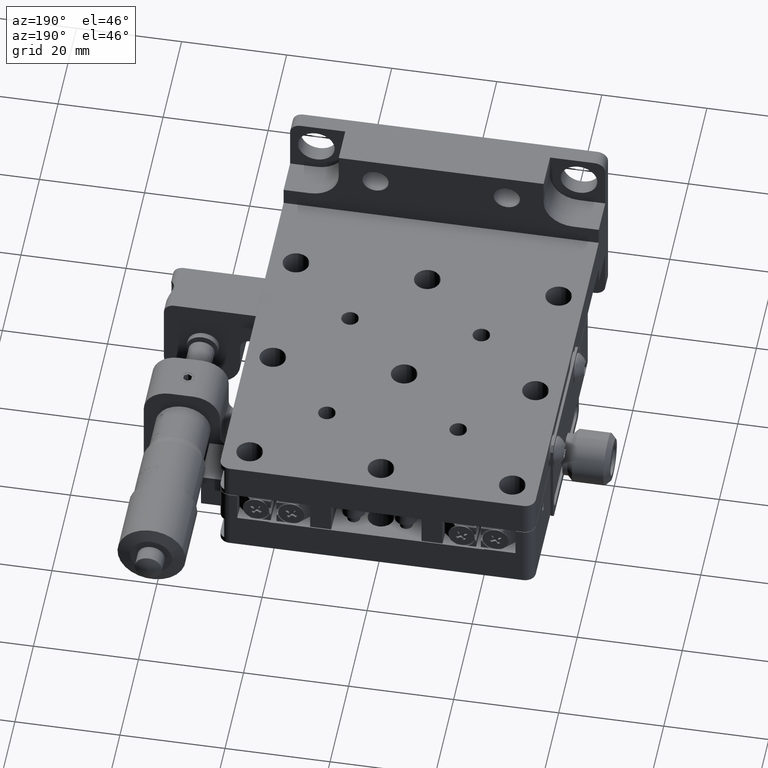
[diagram: clean part render]
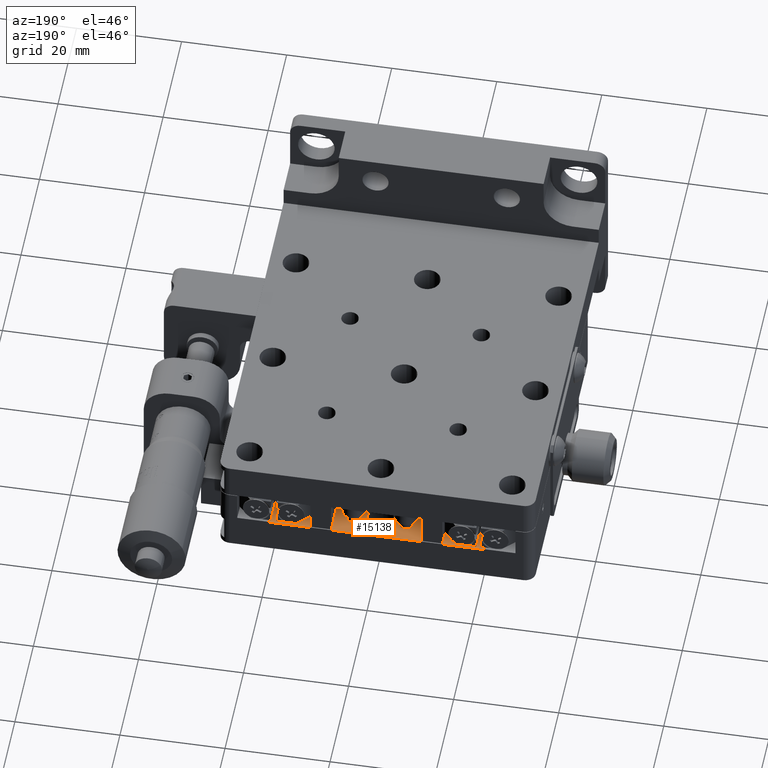
[diagram: same view with one face highlighted and labeled with its STEP entity id]
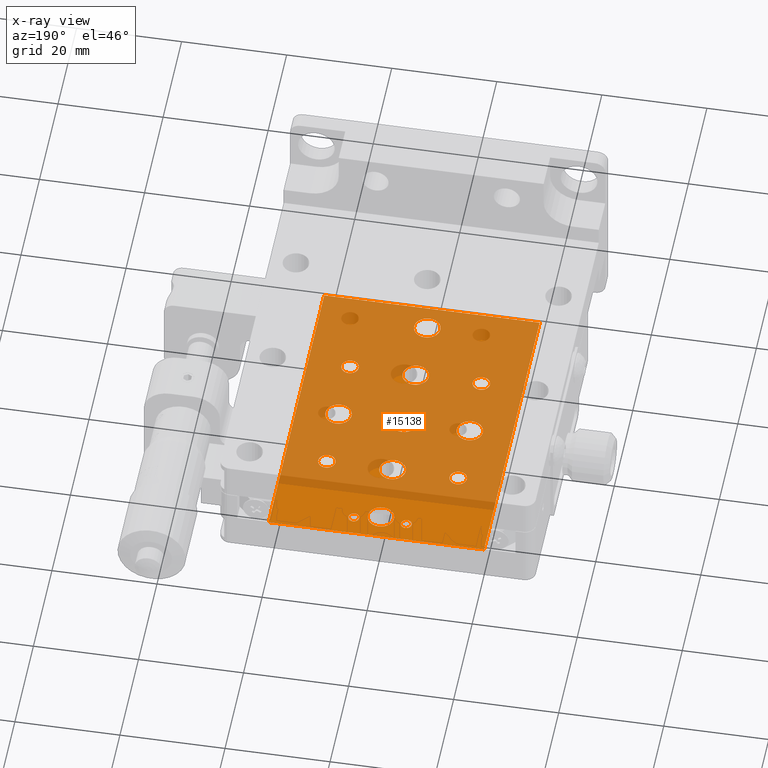
[diagram: x-ray of the same camera — body ghosted, the highlighted face saturated]
A machine part, auxiliary view. The second image highlights one B-rep face of the part: STEP entity #15138.
The next image is the same camera in x-ray: the body ghosted, the highlighted face saturated — about 82% of this face is hidden behind the body in this view.
In plain terms, the highlighted planar face has unit normal (-0, 0, -1).
Its self-contained STEP definition (entity closure, byte-faithful):
#16 = VERTEX_POINT ( 'NONE', #50679 ) ;
#26 = VERTEX_POINT ( 'NONE', #28784 ) ;
#140 = DIRECTION ( 'NONE',  ( 1.051347561198070100E-015, 1.000000000000000000, 7.359432928386491500E-015 ) ) ;
#345 = CARTESIAN_POINT ( 'NONE',  ( -12.50000000000009200, 27.49999999999996100, -9.600000000056365200 ) ) ;
#477 = AXIS2_PLACEMENT_3D ( 'NONE', #26462, #40162, #30930 ) ;
#595 = CARTESIAN_POINT ( 'NONE',  ( 20.49999999999993600, 69.99999999999998600, -9.600000000056136100 ) ) ;
#623 = DIRECTION ( 'NONE',  ( 1.043273540474341700E-015, 1.000000000000000000, 7.632783294297974900E-015 ) ) ;
#718 = CIRCLE ( 'NONE', #26924, 2.499999999999995100 ) ;
#1189 = FACE_BOUND ( 'NONE', #51614, .T. ) ;
#1454 = EDGE_CURVE ( 'NONE', #26900, #26, #7290, .T. ) ;
#1482 = CARTESIAN_POINT ( 'NONE',  ( -8.000152062603825100E-014, 52.49999999999996400, -9.600000000056216000 ) ) ;
#1554 = DIRECTION ( 'NONE',  ( -8.462065736472244600E-016, -1.000000000000000000, -6.769652589177795700E-015 ) ) ;
#2038 = CARTESIAN_POINT ( 'NONE',  ( -1.060833591378968200E-013, 27.50000000000000000, -9.600000000056411400 ) ) ;
#2114 = DIRECTION ( 'NONE',  ( 1.043273540474345300E-015, 1.000000000000000000, 7.632783294297965400E-015 ) ) ;
#2582 = DIRECTION ( 'NONE',  ( 1.000000000000000000, 1.288194811238798000E-015, -2.176517556210199200E-015 ) ) ;
#2921 = AXIS2_PLACEMENT_3D ( 'NONE', #19681, #52316, #48072 ) ;
#2954 = ORIENTED_EDGE ( 'NONE', *, *, #24051, .T. ) ;
#3030 = EDGE_CURVE ( 'NONE', #38594, #42379, #19200, .T. ) ;
#3043 = CARTESIAN_POINT ( 'NONE',  ( 12.49999999999992400, 54.15000000000002700, -9.600000000056228400 ) ) ;
#3320 = AXIS2_PLACEMENT_3D ( 'NONE', #37217, #60268, #27445 ) ;
#3719 = CARTESIAN_POINT ( 'NONE',  ( -1.280845110361061200E-013, 12.49999999999997700, -9.600000000056478900 ) ) ;
#3771 = ORIENTED_EDGE ( 'NONE', *, *, #47554, .F. ) ;
#3780 = DIRECTION ( 'NONE',  ( 1.043273540474341700E-015, 1.000000000000000000, 7.632783294297974900E-015 ) ) ;
#3930 = CARTESIAN_POINT ( 'NONE',  ( -9.304243988196752900E-014, 40.00000000000003600, -9.600000000056303100 ) ) ;
#3937 = EDGE_LOOP ( 'NONE', ( #46316, #19937 ) ) ;
#4141 = VERTEX_POINT ( 'NONE', #48518 ) ;
#4595 = VERTEX_POINT ( 'NONE', #18811 ) ;
#4750 = DIRECTION ( 'NONE',  ( -1.929916084313329200E-015, -7.786228510435219100E-015, -1.000000000000000000 ) ) ;
#4946 = VERTEX_POINT ( 'NONE', #37364 ) ;
#5355 = CIRCLE ( 'NONE', #41499, 2.499999999999988500 ) ;
#5641 = FACE_BOUND ( 'NONE', #46255, .T. ) ;
#5811 = EDGE_CURVE ( 'NONE', #16, #13726, #45582, .T. ) ;
#6106 = VERTEX_POINT ( 'NONE', #54551 ) ;
#6480 = EDGE_LOOP ( 'NONE', ( #55397, #21583 ) ) ;
#6955 = CARTESIAN_POINT ( 'NONE',  ( 20.49999999999993600, 69.99999999999998600, -9.600000000056136100 ) ) ;
#7085 = VECTOR ( 'NONE', #2582, 1000.000000000000000 ) ;
#7165 = EDGE_CURVE ( 'NONE', #46946, #12234, #718, .T. ) ;
#7290 = CIRCLE ( 'NONE', #2921, 1.649999999999991700 ) ;
#7514 = CARTESIAN_POINT ( 'NONE',  ( -20.50000000000006000, 69.99999999999995700, -9.600000000056049000 ) ) ;
#7584 = ORIENTED_EDGE ( 'NONE', *, *, #7165, .T. ) ;
#8547 = CIRCLE ( 'NONE', #51154, 1.024999999999998100 ) ;
#8664 = DIRECTION ( 'NONE',  ( -1.929916084313329200E-015, -7.786228510435219100E-015, -1.000000000000000000 ) ) ;
#8777 = AXIS2_PLACEMENT_3D ( 'NONE', #38932, #47715, #29322 ) ;
#8781 = EDGE_CURVE ( 'NONE', #29832, #4946, #46877, .T. ) ;
#9003 = EDGE_CURVE ( 'NONE', #41188, #41702, #19802, .T. ) ;
#9084 = ORIENTED_EDGE ( 'NONE', *, *, #35206, .F. ) ;
#9246 = CARTESIAN_POINT ( 'NONE',  ( -12.50000000000007100, 42.49999999999995700, -9.600000000056260400 ) ) ;
#9268 = FACE_BOUND ( 'NONE', #13407, .T. ) ;
#9629 = CARTESIAN_POINT ( 'NONE',  ( 12.49999999999990600, 40.00000000000003600, -9.600000000056347500 ) ) ;
#9665 = VERTEX_POINT ( 'NONE', #52514 ) ;
#10010 = DIRECTION ( 'NONE',  ( -1.929916084313329200E-015, -7.786228510435219100E-015, -1.000000000000000000 ) ) ;
#10306 = CIRCLE ( 'NONE', #14557, 1.024999999999998100 ) ;
#11189 = CIRCLE ( 'NONE', #26060, 1.024999999999998100 ) ;
#11358 = EDGE_CURVE ( 'NONE', #13125, #55378, #53543, .T. ) ;
#11529 = CIRCLE ( 'NONE', #477, 2.499999999999992000 ) ;
#11753 = CARTESIAN_POINT ( 'NONE',  ( -12.50000000000007500, 39.99999999999995700, -9.600000000056278200 ) ) ;
#11862 = DIRECTION ( 'NONE',  ( -1.929916084313313500E-015, 7.323635583508070000E-015, -1.000000000000000000 ) ) ;
#12111 = DIRECTION ( 'NONE',  ( -1.043273540474344300E-015, -1.000000000000000000, -7.323635583508068400E-015 ) ) ;
#12234 = VERTEX_POINT ( 'NONE', #47450 ) ;
#12442 = EDGE_CURVE ( 'NONE', #9665, #14562, #42457, .T. ) ;
#13003 = CARTESIAN_POINT ( 'NONE',  ( 12.49999999999988800, 27.50000000000003900, -9.600000000056434500 ) ) ;
#13125 = VERTEX_POINT ( 'NONE', #60234 ) ;
#13356 = CARTESIAN_POINT ( 'NONE',  ( -5.000000000000060400, 65.99999999999995700, -9.600000000056098800 ) ) ;
#13407 = EDGE_LOOP ( 'NONE', ( #46583, #29629 ) ) ;
#13726 = VERTEX_POINT ( 'NONE', #46060 ) ;
#13784 = CARTESIAN_POINT ( 'NONE',  ( -12.50000000000005900, 52.49999999999995700, -9.600000000056189400 ) ) ;
#14232 = AXIS2_PLACEMENT_3D ( 'NONE', #6955, #11862, #53558 ) ;
#14324 = EDGE_LOOP ( 'NONE', ( #49343, #3771 ) ) ;
#14557 = AXIS2_PLACEMENT_3D ( 'NONE', #15625, #38924, #30333 ) ;
#14562 = VERTEX_POINT ( 'NONE', #30796 ) ;
#14764 = EDGE_CURVE ( 'NONE', #47618, #4595, #11529, .T. ) ;
#14960 = EDGE_CURVE ( 'NONE', #29247, #36293, #37880, .T. ) ;
#15043 = DIRECTION ( 'NONE',  ( 1.387778780781448400E-015, 1.000000000000000000, 7.632783294297965400E-015 ) ) ;
#15047 = ORIENTED_EDGE ( 'NONE', *, *, #14960, .T. ) ;
#15138 = ADVANCED_FACE ( 'NONE', ( #56856, #1189, #5641, #50992, #9268, #48808, #42935, #23245, #33411, #57553, #59712, #50246, #34188, #20321 ), #35601, .F. ) ;
#15625 = CARTESIAN_POINT ( 'NONE',  ( 4.999999999999956500, 65.99999999999995700, -9.600000000056136100 ) ) ;
#15797 = AXIS2_PLACEMENT_3D ( 'NONE', #13784, #32201, #23230 ) ;
#15922 = EDGE_LOOP ( 'NONE', ( #25729, #21377 ) ) ;
#16682 = DIRECTION ( 'NONE',  ( -1.929916084313329200E-015, -7.786228510435219100E-015, -1.000000000000000000 ) ) ;
#16725 = CARTESIAN_POINT ( 'NONE',  ( -12.50000000000009200, 27.49999999999996100, -9.600000000056365200 ) ) ;
#16915 = DIRECTION ( 'NONE',  ( 1.051347561198070100E-015, 1.000000000000000000, 7.359432928386491500E-015 ) ) ;
#17852 = CIRCLE ( 'NONE', #49446, 1.024999999999998100 ) ;
#18040 = CARTESIAN_POINT ( 'NONE',  ( 12.49999999999989700, 25.85000000000004800, -9.600000000056422100 ) ) ;
#18306 = EDGE_CURVE ( 'NONE', #49136, #50759, #26440, .T. ) ;
#18343 = CARTESIAN_POINT ( 'NONE',  ( -12.50000000000006800, 37.49999999999996400, -9.600000000056260400 ) ) ;
#18811 = CARTESIAN_POINT ( 'NONE',  ( -1.034751752867109600E-013, 29.99999999999999300, -9.600000000056391900 ) ) ;
#19014 = DIRECTION ( 'NONE',  ( -1.929916084313329200E-015, -7.786228510435219100E-015, -1.000000000000000000 ) ) ;
#19200 = CIRCLE ( 'NONE', #31091, 2.499999999999988500 ) ;
#19661 = CIRCLE ( 'NONE', #15797, 1.649999999999991700 ) ;
#19681 = CARTESIAN_POINT ( 'NONE',  ( 12.49999999999992200, 52.50000000000003600, -9.600000000056240900 ) ) ;
#19771 = AXIS2_PLACEMENT_3D ( 'NONE', #2038, #53772, #58060 ) ;
#19802 = CIRCLE ( 'NONE', #24226, 2.499999999999995100 ) ;
#19937 = ORIENTED_EDGE ( 'NONE', *, *, #51998, .T. ) ;
#20054 = DIRECTION ( 'NONE',  ( -1.929916084313329200E-015, -7.786228510435219100E-015, -1.000000000000000000 ) ) ;
#20321 = FACE_OUTER_BOUND ( 'NONE', #55779, .T. ) ;
#20574 = CARTESIAN_POINT ( 'NONE',  ( -1.150435917801766900E-013, 25.00000000000000700, -9.600000000056391900 ) ) ;
#20968 = CARTESIAN_POINT ( 'NONE',  ( 20.49999999999993600, 69.99999999999998600, -9.600000000056136100 ) ) ;
#21240 = AXIS2_PLACEMENT_3D ( 'NONE', #9629, #41980, #56437 ) ;
#21334 = AXIS2_PLACEMENT_3D ( 'NONE', #25172, #20054, #52695 ) ;
#21377 = ORIENTED_EDGE ( 'NONE', *, *, #14764, .T. ) ;
#21460 = AXIS2_PLACEMENT_3D ( 'NONE', #41828, #27157, #3780 ) ;
#21583 = ORIENTED_EDGE ( 'NONE', *, *, #3030, .T. ) ;
#21717 = EDGE_CURVE ( 'NONE', #13125, #46066, #48042, .T. ) ;
#21997 = DIRECTION ( 'NONE',  ( 1.043273540474348000E-015, 1.000000000000000000, 7.632783294297985900E-015 ) ) ;
#22104 = DIRECTION ( 'NONE',  ( -1.929916084313329200E-015, -7.786228510435219100E-015, -1.000000000000000000 ) ) ;
#22746 = CIRCLE ( 'NONE', #22903, 2.499999999999992000 ) ;
#22903 = AXIS2_PLACEMENT_3D ( 'NONE', #46704, #47298, #623 ) ;
#23099 = CIRCLE ( 'NONE', #44363, 2.499999999999995100 ) ;
#23230 = DIRECTION ( 'NONE',  ( 1.051347561198070100E-015, 1.000000000000000000, 7.359432928386491500E-015 ) ) ;
#23245 = FACE_BOUND ( 'NONE', #33560, .T. ) ;
#23436 = CARTESIAN_POINT ( 'NONE',  ( 12.49999999999989000, 29.15000000000003100, -9.600000000056422100 ) ) ;
#23726 = CARTESIAN_POINT ( 'NONE',  ( -8.000152062603825100E-014, 52.49999999999996400, -9.600000000056216000 ) ) ;
#24051 = EDGE_CURVE ( 'NONE', #13726, #16, #23099, .T. ) ;
#24202 = VECTOR ( 'NONE', #12111, 1000.000000000000000 ) ;
#24226 = AXIS2_PLACEMENT_3D ( 'NONE', #11753, #16682, #49174 ) ;
#24779 = DIRECTION ( 'NONE',  ( 1.929916084313329200E-015, 7.786228510435219100E-015, 1.000000000000000000 ) ) ;
#24841 = EDGE_CURVE ( 'NONE', #4141, #53774, #17852, .T. ) ;
#25172 = CARTESIAN_POINT ( 'NONE',  ( -12.50000000000005900, 52.49999999999995700, -9.600000000056189400 ) ) ;
#25729 = ORIENTED_EDGE ( 'NONE', *, *, #49788, .T. ) ;
#26060 = AXIS2_PLACEMENT_3D ( 'NONE', #53860, #58933, #49391 ) ;
#26267 = ORIENTED_EDGE ( 'NONE', *, *, #45978, .T. ) ;
#26440 = CIRCLE ( 'NONE', #21460, 2.499999999999992000 ) ;
#26462 = CARTESIAN_POINT ( 'NONE',  ( -1.060833591378968200E-013, 27.50000000000000000, -9.600000000056411400 ) ) ;
#26583 = ORIENTED_EDGE ( 'NONE', *, *, #59950, .F. ) ;
#26900 = VERTEX_POINT ( 'NONE', #3043 ) ;
#26924 = AXIS2_PLACEMENT_3D ( 'NONE', #3930, #8664, #41602 ) ;
#27157 = DIRECTION ( 'NONE',  ( -1.929916084313329200E-015, -7.786228510435219100E-015, -1.000000000000000000 ) ) ;
#27445 = DIRECTION ( 'NONE',  ( 1.051347561198070100E-015, 1.000000000000000000, 7.359432928386491500E-015 ) ) ;
#27729 = CARTESIAN_POINT ( 'NONE',  ( -5.000000000000060400, 64.97499999999996600, -9.600000000056105900 ) ) ;
#27812 = DIRECTION ( 'NONE',  ( 1.043273540474345300E-015, 1.000000000000000000, 7.632783294297965400E-015 ) ) ;
#28668 = AXIS2_PLACEMENT_3D ( 'NONE', #16725, #54087, #16915 ) ;
#28784 = CARTESIAN_POINT ( 'NONE',  ( 12.49999999999993100, 50.85000000000004400, -9.600000000056228400 ) ) ;
#29166 = DIRECTION ( 'NONE',  ( -1.929916084313329200E-015, -7.786228510435219100E-015, -1.000000000000000000 ) ) ;
#29247 = VERTEX_POINT ( 'NONE', #23436 ) ;
#29322 = DIRECTION ( 'NONE',  ( 1.051347561198070100E-015, 1.000000000000000000, 7.359432928386491500E-015 ) ) ;
#29629 = ORIENTED_EDGE ( 'NONE', *, *, #35695, .T. ) ;
#29671 = ORIENTED_EDGE ( 'NONE', *, *, #36564, .T. ) ;
#29832 = VERTEX_POINT ( 'NONE', #53750 ) ;
#30240 = EDGE_LOOP ( 'NONE', ( #15047, #40481 ) ) ;
#30333 = DIRECTION ( 'NONE',  ( -8.462065736472244600E-016, -1.000000000000000000, -6.769652589177795700E-015 ) ) ;
#30578 = ORIENTED_EDGE ( 'NONE', *, *, #36546, .T. ) ;
#30796 = CARTESIAN_POINT ( 'NONE',  ( -12.50000000000009100, 29.14999999999995200, -9.600000000056352800 ) ) ;
#30930 = DIRECTION ( 'NONE',  ( 1.043273540474346600E-015, 1.000000000000000000, 7.632783294297974900E-015 ) ) ;
#31067 = VERTEX_POINT ( 'NONE', #44127 ) ;
#31091 = AXIS2_PLACEMENT_3D ( 'NONE', #38100, #38504, #47288 ) ;
#31423 = DIRECTION ( 'NONE',  ( -1.929916084313329200E-015, -7.786228510435219100E-015, -1.000000000000000000 ) ) ;
#31546 = AXIS2_PLACEMENT_3D ( 'NONE', #1482, #48384, #2114 ) ;
#31701 = EDGE_CURVE ( 'NONE', #42379, #38594, #5355, .T. ) ;
#32103 = AXIS2_PLACEMENT_3D ( 'NONE', #33662, #29166, #15043 ) ;
#32201 = DIRECTION ( 'NONE',  ( -1.929916084313329200E-015, -7.786228510435219100E-015, -1.000000000000000000 ) ) ;
#33115 = ORIENTED_EDGE ( 'NONE', *, *, #59586, .T. ) ;
#33411 = FACE_BOUND ( 'NONE', #6480, .T. ) ;
#33560 = EDGE_LOOP ( 'NONE', ( #2954, #58358 ) ) ;
#33662 = CARTESIAN_POINT ( 'NONE',  ( 12.49999999999990600, 40.00000000000003600, -9.600000000056347500 ) ) ;
#34188 = FACE_BOUND ( 'NONE', #48962, .T. ) ;
#34443 = CARTESIAN_POINT ( 'NONE',  ( -12.50000000000005000, 50.84999999999996600, -9.600000000056176900 ) ) ;
#34802 = CIRCLE ( 'NONE', #21334, 1.649999999999991700 ) ;
#35206 = EDGE_CURVE ( 'NONE', #46066, #6106, #39570, .T. ) ;
#35375 = DIRECTION ( 'NONE',  ( 1.000000000000000000, 1.288194811238798000E-015, -2.176517556210199200E-015 ) ) ;
#35448 = CIRCLE ( 'NONE', #57860, 1.649999999999991700 ) ;
#35601 = PLANE ( 'NONE',  #14232 ) ;
#35666 = DIRECTION ( 'NONE',  ( -1.929916084313329200E-015, -7.786228510435219100E-015, -1.000000000000000000 ) ) ;
#35695 = EDGE_CURVE ( 'NONE', #50759, #49136, #22746, .T. ) ;
#35863 = CARTESIAN_POINT ( 'NONE',  ( -6.696060137010893500E-014, 64.99999999999995700, -9.600000000056125400 ) ) ;
#36293 = VERTEX_POINT ( 'NONE', #18040 ) ;
#36302 = DIRECTION ( 'NONE',  ( 1.051347561198070100E-015, 1.000000000000000000, 7.359432928386491500E-015 ) ) ;
#36467 = VECTOR ( 'NONE', #35375, 1000.000000000000000 ) ;
#36486 = CIRCLE ( 'NONE', #47475, 2.499999999999995100 ) ;
#36546 = EDGE_CURVE ( 'NONE', #47598, #39350, #19661, .T. ) ;
#36564 = EDGE_CURVE ( 'NONE', #41702, #41188, #36486, .T. ) ;
#36694 = DIRECTION ( 'NONE',  ( 1.387778780781448400E-015, 1.000000000000000000, 7.632783294297965400E-015 ) ) ;
#37217 = CARTESIAN_POINT ( 'NONE',  ( 12.49999999999992200, 52.50000000000003600, -9.600000000056240900 ) ) ;
#37280 = EDGE_LOOP ( 'NONE', ( #38799, #30578 ) ) ;
#37364 = CARTESIAN_POINT ( 'NONE',  ( 12.49999999999991500, 37.50000000000004300, -9.600000000056329700 ) ) ;
#37880 = CIRCLE ( 'NONE', #8777, 1.649999999999991700 ) ;
#38100 = CARTESIAN_POINT ( 'NONE',  ( -6.696060137010893500E-014, 64.99999999999995700, -9.600000000056125400 ) ) ;
#38178 = CARTESIAN_POINT ( 'NONE',  ( -1.165160945426402000E-013, 17.49999999999996100, -9.600000000056478900 ) ) ;
#38207 = ORIENTED_EDGE ( 'NONE', *, *, #9003, .T. ) ;
#38504 = DIRECTION ( 'NONE',  ( -1.929916084313329200E-015, -7.786228510435219100E-015, -1.000000000000000000 ) ) ;
#38594 = VERTEX_POINT ( 'NONE', #53823 ) ;
#38799 = ORIENTED_EDGE ( 'NONE', *, *, #58375, .T. ) ;
#38924 = DIRECTION ( 'NONE',  ( 1.929916084313329200E-015, 7.786228510435219100E-015, 1.000000000000000000 ) ) ;
#38932 = CARTESIAN_POINT ( 'NONE',  ( 12.49999999999988800, 27.50000000000003900, -9.600000000056434500 ) ) ;
#39350 = VERTEX_POINT ( 'NONE', #49491 ) ;
#39570 = LINE ( 'NONE', #20968, #24202 ) ;
#40054 = EDGE_CURVE ( 'NONE', #55378, #6106, #48920, .T. ) ;
#40162 = DIRECTION ( 'NONE',  ( -1.929916084313329200E-015, -7.786228510435219100E-015, -1.000000000000000000 ) ) ;
#40481 = ORIENTED_EDGE ( 'NONE', *, *, #53723, .T. ) ;
#40910 = CIRCLE ( 'NONE', #19771, 2.499999999999992000 ) ;
#41188 = VERTEX_POINT ( 'NONE', #18343 ) ;
#41499 = AXIS2_PLACEMENT_3D ( 'NONE', #35863, #35666, #21997 ) ;
#41602 = DIRECTION ( 'NONE',  ( 1.043273540474345300E-015, 1.000000000000000000, 7.632783294297965400E-015 ) ) ;
#41696 = CARTESIAN_POINT ( 'NONE',  ( -20.50000000000008900, 9.999999999999960900, -9.600000000056473600 ) ) ;
#41702 = VERTEX_POINT ( 'NONE', #9246 ) ;
#41828 = CARTESIAN_POINT ( 'NONE',  ( -1.191242783938260500E-013, 14.99999999999996800, -9.600000000056496700 ) ) ;
#41980 = DIRECTION ( 'NONE',  ( -1.929916084313329200E-015, -7.786228510435219100E-015, -1.000000000000000000 ) ) ;
#42379 = VERTEX_POINT ( 'NONE', #44357 ) ;
#42457 = CIRCLE ( 'NONE', #28668, 1.649999999999991700 ) ;
#42637 = CARTESIAN_POINT ( 'NONE',  ( 4.999999999999953800, 67.02499999999996300, -9.600000000056145000 ) ) ;
#42867 = AXIS2_PLACEMENT_3D ( 'NONE', #45990, #22104, #55140 ) ;
#42935 = FACE_BOUND ( 'NONE', #54585, .T. ) ;
#44127 = CARTESIAN_POINT ( 'NONE',  ( 4.999999999999955600, 64.97499999999996600, -9.600000000056143200 ) ) ;
#44182 = CARTESIAN_POINT ( 'NONE',  ( 20.49999999999990800, 10.00000000000000200, -9.600000000056560600 ) ) ;
#44357 = CARTESIAN_POINT ( 'NONE',  ( -6.435241751892307700E-014, 67.49999999999994300, -9.600000000056107700 ) ) ;
#44363 = AXIS2_PLACEMENT_3D ( 'NONE', #23726, #19014, #27812 ) ;
#45582 = CIRCLE ( 'NONE', #31546, 2.499999999999995100 ) ;
#45978 = EDGE_CURVE ( 'NONE', #4946, #29832, #46741, .T. ) ;
#45990 = CARTESIAN_POINT ( 'NONE',  ( -9.304243988196752900E-014, 40.00000000000003600, -9.600000000056303100 ) ) ;
#46060 = CARTESIAN_POINT ( 'NONE',  ( -7.739333677485239300E-014, 54.99999999999995700, -9.600000000056196500 ) ) ;
#46066 = VERTEX_POINT ( 'NONE', #595 ) ;
#46104 = DIRECTION ( 'NONE',  ( 1.929916084313329200E-015, 7.786228510435219100E-015, 1.000000000000000000 ) ) ;
#46255 = EDGE_LOOP ( 'NONE', ( #56439, #26267 ) ) ;
#46316 = ORIENTED_EDGE ( 'NONE', *, *, #1454, .T. ) ;
#46583 = ORIENTED_EDGE ( 'NONE', *, *, #18306, .T. ) ;
#46704 = CARTESIAN_POINT ( 'NONE',  ( -1.191242783938260500E-013, 14.99999999999996800, -9.600000000056496700 ) ) ;
#46741 = CIRCLE ( 'NONE', #21240, 2.499999999999995100 ) ;
#46877 = CIRCLE ( 'NONE', #32103, 2.499999999999995100 ) ;
#46946 = VERTEX_POINT ( 'NONE', #53382 ) ;
#47288 = DIRECTION ( 'NONE',  ( 1.043273540474348000E-015, 1.000000000000000000, 7.632783294297985900E-015 ) ) ;
#47297 = EDGE_LOOP ( 'NONE', ( #29671, #38207 ) ) ;
#47298 = DIRECTION ( 'NONE',  ( -1.929916084313329200E-015, -7.786228510435219100E-015, -1.000000000000000000 ) ) ;
#47331 = CIRCLE ( 'NONE', #3320, 1.649999999999991700 ) ;
#47450 = CARTESIAN_POINT ( 'NONE',  ( -9.043425603078167100E-014, 42.50000000000002800, -9.600000000056283500 ) ) ;
#47475 = AXIS2_PLACEMENT_3D ( 'NONE', #55487, #4750, #36694 ) ;
#47554 = EDGE_CURVE ( 'NONE', #56136, #31067, #10306, .T. ) ;
#47598 = VERTEX_POINT ( 'NONE', #34443 ) ;
#47618 = VERTEX_POINT ( 'NONE', #20574 ) ;
#47715 = DIRECTION ( 'NONE',  ( -1.929916084313329200E-015, -7.786228510435219100E-015, -1.000000000000000000 ) ) ;
#47751 = VECTOR ( 'NONE', #55926, 1000.000000000000000 ) ;
#48042 = LINE ( 'NONE', #50233, #7085 ) ;
#48072 = DIRECTION ( 'NONE',  ( 1.051347561198070100E-015, 1.000000000000000000, 7.359432928386491500E-015 ) ) ;
#48384 = DIRECTION ( 'NONE',  ( -1.929916084313329200E-015, -7.786228510435219100E-015, -1.000000000000000000 ) ) ;
#48498 = AXIS2_PLACEMENT_3D ( 'NONE', #345, #10010, #140 ) ;
#48518 = CARTESIAN_POINT ( 'NONE',  ( -5.000000000000063100, 67.02499999999996300, -9.600000000056107700 ) ) ;
#48808 = FACE_BOUND ( 'NONE', #15922, .T. ) ;
#48920 = LINE ( 'NONE', #44182, #36467 ) ;
#48962 = EDGE_LOOP ( 'NONE', ( #58030, #53994 ) ) ;
#49136 = VERTEX_POINT ( 'NONE', #38178 ) ;
#49174 = DIRECTION ( 'NONE',  ( 1.387778780781448400E-015, 1.000000000000000000, 7.632783294297965400E-015 ) ) ;
#49343 = ORIENTED_EDGE ( 'NONE', *, *, #52261, .F. ) ;
#49391 = DIRECTION ( 'NONE',  ( -8.462065736472244600E-016, -1.000000000000000000, -6.769652589177795700E-015 ) ) ;
#49446 = AXIS2_PLACEMENT_3D ( 'NONE', #13356, #46104, #50763 ) ;
#49491 = CARTESIAN_POINT ( 'NONE',  ( -12.50000000000005700, 54.14999999999994900, -9.600000000056176900 ) ) ;
#49788 = EDGE_CURVE ( 'NONE', #4595, #47618, #40910, .T. ) ;
#49998 = ORIENTED_EDGE ( 'NONE', *, *, #11358, .T. ) ;
#50025 = CIRCLE ( 'NONE', #42867, 2.499999999999995100 ) ;
#50233 = CARTESIAN_POINT ( 'NONE',  ( 20.49999999999993600, 69.99999999999998600, -9.600000000056136100 ) ) ;
#50246 = FACE_BOUND ( 'NONE', #30240, .T. ) ;
#50679 = CARTESIAN_POINT ( 'NONE',  ( -8.896175326831817600E-014, 49.99999999999997200, -9.600000000056196500 ) ) ;
#50759 = VERTEX_POINT ( 'NONE', #3719 ) ;
#50763 = DIRECTION ( 'NONE',  ( -8.462065736472244600E-016, -1.000000000000000000, -6.769652589177795700E-015 ) ) ;
#50992 = FACE_BOUND ( 'NONE', #47297, .T. ) ;
#51154 = AXIS2_PLACEMENT_3D ( 'NONE', #58201, #24779, #1554 ) ;
#51614 = EDGE_LOOP ( 'NONE', ( #26583, #54883 ) ) ;
#51998 = EDGE_CURVE ( 'NONE', #26, #26900, #47331, .T. ) ;
#52261 = EDGE_CURVE ( 'NONE', #31067, #56136, #8547, .T. ) ;
#52316 = DIRECTION ( 'NONE',  ( -1.929916084313329200E-015, -7.786228510435219100E-015, -1.000000000000000000 ) ) ;
#52514 = CARTESIAN_POINT ( 'NONE',  ( -12.50000000000008300, 25.84999999999996900, -9.600000000056352800 ) ) ;
#52695 = DIRECTION ( 'NONE',  ( 1.051347561198070100E-015, 1.000000000000000000, 7.359432928386491500E-015 ) ) ;
#53265 = EDGE_CURVE ( 'NONE', #14562, #9665, #58838, .T. ) ;
#53382 = CARTESIAN_POINT ( 'NONE',  ( -1.020026725242473800E-013, 37.50000000000004300, -9.600000000056283500 ) ) ;
#53543 = LINE ( 'NONE', #7514, #47751 ) ;
#53558 = DIRECTION ( 'NONE',  ( 1.043273540474344300E-015, 1.000000000000000000, 7.323635583508068400E-015 ) ) ;
#53723 = EDGE_CURVE ( 'NONE', #36293, #29247, #35448, .T. ) ;
#53750 = CARTESIAN_POINT ( 'NONE',  ( 12.49999999999990900, 42.50000000000002800, -9.600000000056329700 ) ) ;
#53772 = DIRECTION ( 'NONE',  ( -1.929916084313329200E-015, -7.786228510435219100E-015, -1.000000000000000000 ) ) ;
#53774 = VERTEX_POINT ( 'NONE', #27729 ) ;
#53823 = CARTESIAN_POINT ( 'NONE',  ( -7.592083401238897300E-014, 62.49999999999996400, -9.600000000056107700 ) ) ;
#53860 = CARTESIAN_POINT ( 'NONE',  ( -5.000000000000060400, 65.99999999999995700, -9.600000000056098800 ) ) ;
#53994 = ORIENTED_EDGE ( 'NONE', *, *, #12442, .T. ) ;
#54087 = DIRECTION ( 'NONE',  ( -1.929916084313329200E-015, -7.786228510435219100E-015, -1.000000000000000000 ) ) ;
#54551 = CARTESIAN_POINT ( 'NONE',  ( 20.49999999999990800, 10.00000000000000200, -9.600000000056560600 ) ) ;
#54585 = EDGE_LOOP ( 'NONE', ( #33115, #7584 ) ) ;
#54883 = ORIENTED_EDGE ( 'NONE', *, *, #24841, .F. ) ;
#55140 = DIRECTION ( 'NONE',  ( 1.043273540474345300E-015, 1.000000000000000000, 7.632783294297965400E-015 ) ) ;
#55378 = VERTEX_POINT ( 'NONE', #41696 ) ;
#55397 = ORIENTED_EDGE ( 'NONE', *, *, #31701, .T. ) ;
#55487 = CARTESIAN_POINT ( 'NONE',  ( -12.50000000000007500, 39.99999999999995700, -9.600000000056278200 ) ) ;
#55779 = EDGE_LOOP ( 'NONE', ( #58228, #9084, #59227, #49998 ) ) ;
#55926 = DIRECTION ( 'NONE',  ( -1.043273540474344300E-015, -1.000000000000000000, -7.323635583508068400E-015 ) ) ;
#56136 = VERTEX_POINT ( 'NONE', #42637 ) ;
#56437 = DIRECTION ( 'NONE',  ( 1.387778780781448400E-015, 1.000000000000000000, 7.632783294297965400E-015 ) ) ;
#56439 = ORIENTED_EDGE ( 'NONE', *, *, #8781, .T. ) ;
#56856 = FACE_BOUND ( 'NONE', #14324, .T. ) ;
#57553 = FACE_BOUND ( 'NONE', #3937, .T. ) ;
#57860 = AXIS2_PLACEMENT_3D ( 'NONE', #13003, #31423, #36302 ) ;
#58030 = ORIENTED_EDGE ( 'NONE', *, *, #53265, .T. ) ;
#58060 = DIRECTION ( 'NONE',  ( 1.043273540474346600E-015, 1.000000000000000000, 7.632783294297974900E-015 ) ) ;
#58201 = CARTESIAN_POINT ( 'NONE',  ( 4.999999999999956500, 65.99999999999995700, -9.600000000056136100 ) ) ;
#58228 = ORIENTED_EDGE ( 'NONE', *, *, #40054, .T. ) ;
#58358 = ORIENTED_EDGE ( 'NONE', *, *, #5811, .T. ) ;
#58375 = EDGE_CURVE ( 'NONE', #39350, #47598, #34802, .T. ) ;
#58838 = CIRCLE ( 'NONE', #48498, 1.649999999999991700 ) ;
#58933 = DIRECTION ( 'NONE',  ( 1.929916084313329200E-015, 7.786228510435219100E-015, 1.000000000000000000 ) ) ;
#59227 = ORIENTED_EDGE ( 'NONE', *, *, #21717, .F. ) ;
#59586 = EDGE_CURVE ( 'NONE', #12234, #46946, #50025, .T. ) ;
#59712 = FACE_BOUND ( 'NONE', #37280, .T. ) ;
#59950 = EDGE_CURVE ( 'NONE', #53774, #4141, #11189, .T. ) ;
#60234 = CARTESIAN_POINT ( 'NONE',  ( -20.50000000000006000, 69.99999999999995700, -9.600000000056049000 ) ) ;
#60268 = DIRECTION ( 'NONE',  ( -1.929916084313329200E-015, -7.786228510435219100E-015, -1.000000000000000000 ) ) ;